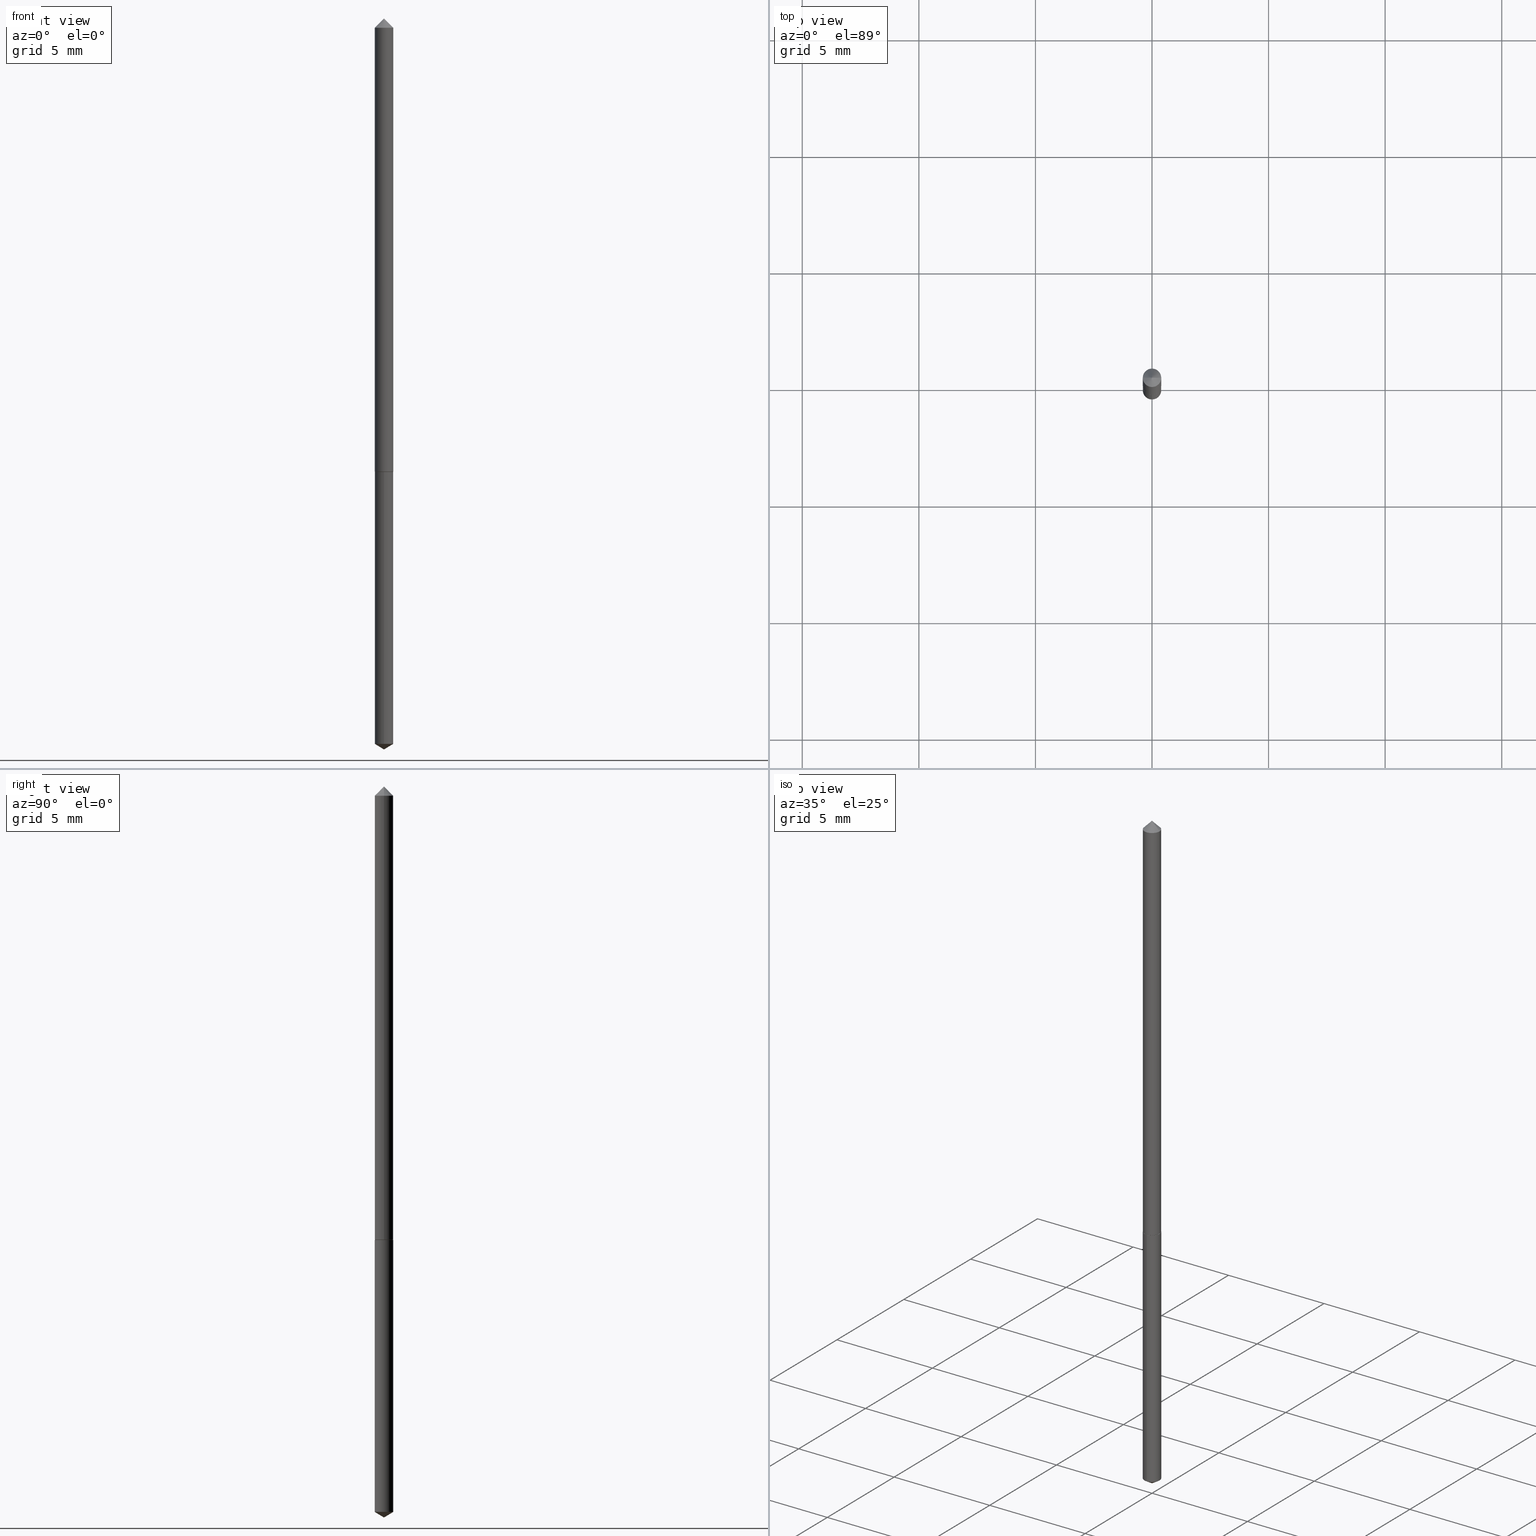
[diagram: canonical four-view strip — front | top / right | iso, engineering-drawing reading convention]
A machine part, canonical four-view strip (front | top / right | iso — engineering-drawing reading convention). The complete STEP part file that produces these views, byte-faithful:
ISO-10303-21;
HEADER;
FILE_DESCRIPTION (( 'STEP AP203' ),
    '1' );
FILE_NAME ('51102.STEP',
    '2024-04-22T18:26:14',
    ( '' ),
    ( '' ),
    'SwSTEP 2.0',
    'SolidWorks 2023',
    '' );
FILE_SCHEMA (( 'CONFIG_CONTROL_DESIGN' ));
ENDSEC;

DATA;
#1 = DIRECTION ( 'NONE',  ( -2.445468806185136597E-29, 3.491481338843145583E-15, 1.000000000000000000 ) ) ;
#2 = CC_DESIGN_PERSON_AND_ORGANIZATION_ASSIGNMENT ( #120, #315, ( #104 ) ) ;
#3 = DIRECTION ( 'NONE',  ( -1.000000000000000000, 6.982962677686267499E-15, 0.000000000000000000 ) ) ;
#4 = DIRECTION ( 'NONE',  ( 1.000000000000000000, 0.000000000000000000, 0.000000000000000000 ) ) ;
#5 = CLOSED_SHELL ( 'NONE', ( #108, #223, #240, #44, #114 ) ) ;
#6 = LOCAL_TIME ( 14, 26, 14.00000000000000000, #207 ) ;
#7 = EDGE_LOOP ( 'NONE', ( #36, #39, #121 ) ) ;
#8 = APPLICATION_PROTOCOL_DEFINITION ( 'international standard', 'config_control_design', 1994, #156 ) ;
#9 = ORIENTED_EDGE ( 'NONE', *, *, #90, .F. ) ;
#10 = EDGE_CURVE ( 'NONE', #288, #231, #248, .T. ) ;
#11 = APPROVAL_DATE_TIME ( #149, #294 ) ;
#12 = VERTEX_POINT ( 'NONE', #126 ) ;
#13 = CARTESIAN_POINT ( 'NONE',  ( 1.910400231391829134E-29, -2.727545221904265644E-15, -0.7812000000000001165 ) ) ;
#14 = CIRCLE ( 'NONE', #196, 0.01560000000000009469 ) ;
#15 = DIRECTION ( 'NONE',  ( -2.445468806185136597E-29, 3.491481338843145583E-15, 1.000000000000000000 ) ) ;
#16 = FACE_OUTER_BOUND ( 'NONE', #255, .T. ) ;
#17 = CYLINDRICAL_SURFACE ( 'NONE', #35, 0.01560000000000004959 ) ;
#18 = AXIS2_PLACEMENT_3D ( 'NONE', #13, #15, #325 ) ;
#19 = APPROVAL_PERSON_ORGANIZATION ( #203, #132, #287 ) ;
#20 = CARTESIAN_POINT ( 'NONE',  ( 1.910400231391829134E-29, -2.727545221904265644E-15, -0.7812000000000001165 ) ) ;
#21 = DIRECTION ( 'NONE',  ( 2.445620456542437956E-29, -3.491264166900087350E-15, -1.000000000000000000 ) ) ;
#22 = DIRECTION ( 'NONE',  ( -2.445620456542437956E-29, 3.491264166900087744E-15, 1.000000000000000000 ) ) ;
#23 = AXIS2_PLACEMENT_3D ( 'NONE', #193, #140, #110 ) ;
#24 = CIRCLE ( 'NONE', #304, 0.01559999999999999928 ) ;
#25 = CARTESIAN_POINT ( 'NONE',  ( 1.108446667786060567E-16, 0.01559999999999727403, -0.7812000000000001165 ) ) ;
#26 = DIRECTION ( 'NONE',  ( -2.445468806185136597E-29, 3.491481338843145583E-15, 1.000000000000000000 ) ) ;
#27 = CARTESIAN_POINT ( 'NONE',  ( 0.01510000000000006649, -2.832987958337328799E-15, -0.7812000000000001165 ) ) ;
#28 = EDGE_CURVE ( 'NONE', #41, #150, #70, .T. ) ;
#29 = CLOSED_SHELL ( 'NONE', ( #353, #264, #291, #62, #232, #154, #276 ) ) ;
#30 = CARTESIAN_POINT ( 'NONE',  ( 7.642090019328600035E-31, -1.091087918388489897E-16, -0.03125000000000020123 ) ) ;
#31 = CC_DESIGN_PERSON_AND_ORGANIZATION_ASSIGNMENT ( #230, #344, ( #320 ) ) ;
#32 = LINE ( 'NONE', #59, #210 ) ;
#33 = ORIENTED_EDGE ( 'NONE', *, *, #253, .F. ) ;
#34 = APPLICATION_PROTOCOL_DEFINITION ( 'international standard', 'config_control_design', 1994, #37 ) ;
#35 = AXIS2_PLACEMENT_3D ( 'NONE', #162, #246, #305 ) ;
#36 = ORIENTED_EDGE ( 'NONE', *, *, #28, .F. ) ;
#37 = APPLICATION_CONTEXT ( 'configuration controlled 3d designs of mechanical parts and assemblies' ) ;
#38 = PERSON_AND_ORGANIZATION ( #143, #298 ) ;
#39 = ORIENTED_EDGE ( 'NONE', *, *, #266, .T. ) ;
#40 = PERSON_AND_ORGANIZATION ( #143, #298 ) ;
#41 = VERTEX_POINT ( 'NONE', #160 ) ;
#42 = APPROVAL_DATE_TIME ( #178, #132 ) ;
#43 = ORIENTED_EDGE ( 'NONE', *, *, #342, .F. ) ;
#44 = ADVANCED_FACE ( 'NONE', ( #75 ), #100, .T. ) ;
#45 = CARTESIAN_POINT ( 'NONE',  ( 3.056788632159799955E-29, -4.364419518068943560E-15, -1.250000000000000000 ) ) ;
#46 = DIRECTION ( 'NONE',  ( -0.7071067811865453523, 2.468850131082234184E-15, -0.7071067811865496822 ) ) ;
#47 = DIMENSIONAL_EXPONENTS ( 1.000000000000000000, 0.000000000000000000, 0.000000000000000000, 0.000000000000000000, 0.000000000000000000, 0.000000000000000000, 0.000000000000000000 ) ;
#48 = CARTESIAN_POINT ( 'NONE',  ( 7.642090019328600035E-31, -1.091087918388489897E-16, -0.03125000000000020123 ) ) ;
#49 = DIRECTION ( 'NONE',  ( -2.445620456542437956E-29, 3.491264166900087350E-15, 1.000000000000000000 ) ) ;
#50 = DIRECTION ( 'NONE',  ( 1.000000000000000000, -6.982962677686272233E-15, 0.000000000000000000 ) ) ;
#51 = EDGE_CURVE ( 'NONE', #150, #241, #308, .T. ) ;
#52 = DIRECTION ( 'NONE',  ( -0.7071067811866394992, 7.493145998870685482E-15, 0.7071067811864553132 ) ) ;
#53 = AXIS2_PLACEMENT_3D ( 'NONE', #361, #136, #165 ) ;
#54 = APPROVAL_PERSON_ORGANIZATION ( #40, #294, #293 ) ;
#55 = DIRECTION ( 'NONE',  ( -2.445620456542437956E-29, 3.491264166900087744E-15, 1.000000000000000000 ) ) ;
#56 = CYLINDRICAL_SURFACE ( 'NONE', #228, 0.01560000000000004959 ) ;
#57 = CARTESIAN_POINT ( 'NONE',  ( 3.033983259884700615E-29, -4.331524758230234496E-15, -1.240626574343170141 ) ) ;
#58 = CC_DESIGN_DATE_AND_TIME_ASSIGNMENT ( #233, #198, ( #320 ) ) ;
#59 = CARTESIAN_POINT ( 'NONE',  ( 3.057027648349169322E-29, -4.364080208625109779E-15, -1.250000000000000000 ) ) ;
#60 = ORIENTED_EDGE ( 'NONE', *, *, #301, .T. ) ;
#61 =( NAMED_UNIT ( * ) SI_UNIT ( $, .STERADIAN. ) SOLID_ANGLE_UNIT ( ) );
#62 = ADVANCED_FACE ( 'NONE', ( #355 ), #274, .F. ) ;
#63 = ORIENTED_EDGE ( 'NONE', *, *, #338, .T. ) ;
#64 = PERSON_AND_ORGANIZATION ( #143, #298 ) ;
#65 = EDGE_LOOP ( 'NONE', ( #119, #84, #199, #69 ) ) ;
#66 = COORDINATED_UNIVERSAL_TIME_OFFSET ( 5, 0, .BEHIND. ) ;
#67 = EDGE_LOOP ( 'NONE', ( #63, #206, #125, #354 ) ) ;
#68 = PERSON_AND_ORGANIZATION_ROLE ( 'design_supplier' ) ;
#69 = ORIENTED_EDGE ( 'NONE', *, *, #148, .F. ) ;
#70 = LINE ( 'NONE', #45, #85 ) ;
#71 = CIRCLE ( 'NONE', #168, 0.01560000000000000275 ) ;
#72 = CONICAL_SURFACE ( 'NONE', #109, 0.01560000000000009469, 0.7853981633975785082 ) ;
#73 = CARTESIAN_POINT ( 'NONE',  ( -1.089342177718866371E-16, -0.01560000000000272627, -0.7812000000000001165 ) ) ;
#74 = FACE_OUTER_BOUND ( 'NONE', #155, .T. ) ;
#75 = FACE_OUTER_BOUND ( 'NONE', #153, .T. ) ;
#76 = DIRECTION ( 'NONE',  ( -2.445620456542437956E-29, 3.491264166900087350E-15, 1.000000000000000000 ) ) ;
#77 = UNCERTAINTY_MEASURE_WITH_UNIT (LENGTH_MEASURE( 1.000000000000000082E-05 ), #278, 'distance_accuracy_value', 'NONE');
#78 = LINE ( 'NONE', #183, #190 ) ;
#79 = VERTEX_POINT ( 'NONE', #359 ) ;
#80 = FACE_OUTER_BOUND ( 'NONE', #348, .T. ) ;
#81 = EDGE_CURVE ( 'NONE', #288, #296, #303, .T. ) ;
#82 = DIRECTION ( 'NONE',  ( -1.000000000000000000, 6.982962677686267499E-15, 0.000000000000000000 ) ) ;
#83 = DIRECTION ( 'NONE',  ( -2.445620456542437956E-29, 3.491264166900087744E-15, 1.000000000000000000 ) ) ;
#84 = ORIENTED_EDGE ( 'NONE', *, *, #10, .T. ) ;
#85 = VECTOR ( 'NONE', #273, 39.37007874015748143 ) ;
#86 = LINE ( 'NONE', #251, #180 ) ;
#87 = COORDINATED_UNIVERSAL_TIME_OFFSET ( 5, 0, .BEHIND. ) ;
#88 = COORDINATED_UNIVERSAL_TIME_OFFSET ( 5, 0, .BEHIND. ) ;
#89 = ORIENTED_EDGE ( 'NONE', *, *, #81, .T. ) ;
#90 = EDGE_CURVE ( 'NONE', #231, #288, #349, .T. ) ;
#91 = DATE_TIME_ROLE ( 'classification_date' ) ;
#92 = EDGE_LOOP ( 'NONE', ( #239, #172, #318, #116 ) ) ;
#93 = EDGE_CURVE ( 'NONE', #79, #263, #78, .T. ) ;
#94 = CALENDAR_DATE ( 2024, 22, 4 ) ;
#95 = ORIENTED_EDGE ( 'NONE', *, *, #257, .F. ) ;
#96 = ORIENTED_EDGE ( 'NONE', *, *, #195, .T. ) ;
#97 = LINE ( 'NONE', #219, #152 ) ;
#98 = VECTOR ( 'NONE', #340, 39.37007874015748854 ) ;
#99 = EDGE_CURVE ( 'NONE', #296, #263, #157, .T. ) ;
#100 = CYLINDRICAL_SURFACE ( 'NONE', #326, 0.01559999999999999928 ) ;
#101 = LINE ( 'NONE', #128, #243 ) ;
#102 = FACE_OUTER_BOUND ( 'NONE', #7, .T. ) ;
#103 = AXIS2_PLACEMENT_3D ( 'NONE', #216, #22, #249 ) ;
#104 = PRODUCT_DEFINITION_FORMATION_WITH_SPECIFIED_SOURCE ( 'ANY', '', #181, .NOT_KNOWN. ) ;
#105 = DIRECTION ( 'NONE',  ( 6.982962677686265922E-15, 1.000000000000000000, -3.491264166900087350E-15 ) ) ;
#106 = DIRECTION ( 'NONE',  ( 1.000000000000000000, -6.982962677686266711E-15, 4.876176775795935793E-29 ) ) ;
#107 = CARTESIAN_POINT ( 'NONE',  ( 0.000000000000000000, 0.000000000000000000, 0.000000000000000000 ) ) ;
#108 = ADVANCED_FACE ( 'NONE', ( #16 ), #356, .T. ) ;
#109 = AXIS2_PLACEMENT_3D ( 'NONE', #363, #312, #197 ) ;
#110 = DIRECTION ( 'NONE',  ( -6.982962677686265922E-15, -1.000000000000000000, 0.000000000000000000 ) ) ;
#111 = MANIFOLD_SOLID_BREP ( 'Body-Move/Copy2[1]', #5 ) ;
#112 = DIRECTION ( 'NONE',  ( 1.000000000000000000, -6.982962677686272233E-15, 0.000000000000000000 ) ) ;
#113 = ORIENTED_EDGE ( 'NONE', *, *, #342, .T. ) ;
#114 = ADVANCED_FACE ( 'NONE', ( #74 ), #130, .F. ) ;
#115 = CIRCLE ( 'NONE', #23, 0.01559999999999999928 ) ;
#116 = ORIENTED_EDGE ( 'NONE', *, *, #225, .F. ) ;
#117 = MANIFOLD_SOLID_BREP ( 'Body-Move/Copy2[2]', #29 ) ;
#118 =( NAMED_UNIT ( * ) PLANE_ANGLE_UNIT ( ) SI_UNIT ( $, .RADIAN. ) );
#119 = ORIENTED_EDGE ( 'NONE', *, *, #81, .F. ) ;
#120 = PERSON_AND_ORGANIZATION ( #143, #298 ) ;
#121 = ORIENTED_EDGE ( 'NONE', *, *, #307, .F. ) ;
#122 = PRODUCT_RELATED_PRODUCT_CATEGORY ( 'detail', '', ( #181 ) ) ;
#123 = APPROVAL_ROLE ( '' ) ;
#124 = AXIS2_PLACEMENT_3D ( 'NONE', #127, #21, #105 ) ;
#125 = ORIENTED_EDGE ( 'NONE', *, *, #137, .F. ) ;
#126 = CARTESIAN_POINT ( 'NONE',  ( 0.01560000000000009469, -2.834733699006751091E-15, -0.7807000000000001716 ) ) ;
#127 = CARTESIAN_POINT ( 'NONE',  ( 1.910400231391829134E-29, -2.727545221904265644E-15, -0.7812000000000001165 ) ) ;
#128 = CARTESIAN_POINT ( 'NONE',  ( 0.01560000000000004959, -1.089342177719061121E-16, 7.606835770241683722E-31 ) ) ;
#129 = LOCAL_TIME ( 14, 26, 14.00000000000000000, #66 ) ;
#130 = PLANE ( 'NONE',  #124 ) ;
#131 = DIRECTION ( 'NONE',  ( 1.000000000000000000, -6.982962677686250144E-15, 0.000000000000000000 ) ) ;
#132 = APPROVAL ( #321, 'UNSPECIFIED' ) ;
#133 = CARTESIAN_POINT ( 'NONE',  ( 1.910400231391829134E-29, -2.727545221904265644E-15, -0.7812000000000001165 ) ) ;
#134 = CONICAL_SURFACE ( 'NONE', #343, 0.01560000000000009469, 0.7853981633975785082 ) ;
#135 = CIRCLE ( 'NONE', #319, 0.01560000000000009469 ) ;
#136 = DIRECTION ( 'NONE',  ( -2.445620456542437956E-29, 3.491264166900087744E-15, 1.000000000000000000 ) ) ;
#137 = EDGE_CURVE ( 'NONE', #208, #263, #71, .T. ) ;
#138 = CARTESIAN_POINT ( 'NONE',  ( -0.01560000000000000275, -1.306609469758268803E-15, -0.03125000000000020123 ) ) ;
#139 = CARTESIAN_POINT ( 'NONE',  ( 3.033983259884700615E-29, -4.331524758230234496E-15, -1.240626574343170141 ) ) ;
#140 = DIRECTION ( 'NONE',  ( -2.445620456542437956E-29, 3.491264166900087744E-15, 1.000000000000000000 ) ) ;
#141 = ORIENTED_EDGE ( 'NONE', *, *, #10, .F. ) ;
#142 = AXIS2_PLACEMENT_3D ( 'NONE', #20, #328, #270 ) ;
#143 = PERSON ( 'UNSPECIFIED', 'UNSPECIFIED', 'UNSPECIFIED', ('UNSPECIFIED'), ('UNSPECIFIED'), ('UNSPECIFIED') ) ;
#144 = SECURITY_CLASSIFICATION_LEVEL ( 'unclassified' ) ;
#145 = ORIENTED_EDGE ( 'NONE', *, *, #195, .F. ) ;
#146 = PERSON_AND_ORGANIZATION ( #143, #298 ) ;
#147 = EDGE_LOOP ( 'NONE', ( #9, #141 ) ) ;
#148 = EDGE_CURVE ( 'NONE', #296, #12, #14, .T. ) ;
#149 = DATE_AND_TIME ( #323, #350 ) ;
#150 = VERTEX_POINT ( 'NONE', #187 ) ;
#151 = SHAPE_DEFINITION_REPRESENTATION ( #211, #217 ) ;
#152 = VECTOR ( 'NONE', #49, 39.37007874015748143 ) ;
#153 = EDGE_LOOP ( 'NONE', ( #145, #60, #316, #43 ) ) ;
#154 = ADVANCED_FACE ( 'NONE', ( #158 ), #17, .T. ) ;
#155 = EDGE_LOOP ( 'NONE', ( #337, #113 ) ) ;
#156 = APPLICATION_CONTEXT ( 'configuration controlled 3d designs of mechanical parts and assemblies' ) ;
#157 = LINE ( 'NONE', #306, #237 ) ;
#158 = FACE_OUTER_BOUND ( 'NONE', #92, .T. ) ;
#159 = AXIS2_PLACEMENT_3D ( 'NONE', #214, #302, #131 ) ;
#160 = CARTESIAN_POINT ( 'NONE',  ( 3.057025570678047796E-29, -4.364080208625109779E-15, -1.250000000000000000 ) ) ;
#161 = CC_DESIGN_PERSON_AND_ORGANIZATION_ASSIGNMENT ( #38, #174, ( #181 ) ) ;
#162 = CARTESIAN_POINT ( 'NONE',  ( 0.000000000000000000, 0.000000000000000000, 0.000000000000000000 ) ) ;
#163 = LENGTH_MEASURE_WITH_UNIT ( LENGTH_MEASURE( 0.02539999999999999897 ), #227 );
#164 = CONICAL_SURFACE ( 'NONE', #244, 0.01560000000000000275, 0.7853981633974452814 ) ;
#165 = DIRECTION ( 'NONE',  ( -6.982962677686267499E-15, -1.000000000000000000, 3.468864327941580804E-15 ) ) ;
#166 = DIRECTION ( 'NONE',  ( 0.7071067811865453523, -7.319954787623248157E-15, -0.7071067811865496822 ) ) ;
#167 = DIRECTION ( 'NONE',  ( -2.445620456542437956E-29, 3.491264166900087744E-15, 1.000000000000000000 ) ) ;
#168 = AXIS2_PLACEMENT_3D ( 'NONE', #48, #184, #334 ) ;
#169 = DIRECTION ( 'NONE',  ( -6.982962677686265922E-15, -1.000000000000000000, 0.000000000000000000 ) ) ;
#170 = CC_DESIGN_PERSON_AND_ORGANIZATION_ASSIGNMENT ( #346, #317, ( #173 ) ) ;
#171 = DIRECTION ( 'NONE',  ( 0.000000000000000000, 0.000000000000000000, 1.000000000000000000 ) ) ;
#172 = ORIENTED_EDGE ( 'NONE', *, *, #148, .T. ) ;
#173 = SECURITY_CLASSIFICATION ( '', '', #144 ) ;
#174 = PERSON_AND_ORGANIZATION_ROLE ( 'design_owner' ) ;
#175 = ORIENTED_EDGE ( 'NONE', *, *, #338, .F. ) ;
#176 = APPROVAL_STATUS ( 'not_yet_approved' ) ;
#177 = ORIENTED_EDGE ( 'NONE', *, *, #137, .T. ) ;
#178 = DATE_AND_TIME ( #94, #129 ) ;
#179 = VERTEX_POINT ( 'NONE', #357 ) ;
#180 = VECTOR ( 'NONE', #166, 39.37007874015748143 ) ;
#181 = PRODUCT ( '51102', '51102', '', ( #200 ) ) ;
#182 = ORIENTED_EDGE ( 'NONE', *, *, #225, .T. ) ;
#183 = CARTESIAN_POINT ( 'NONE',  ( -0.01560000000000000275, -1.745740669432077165E-19, -0.03125000000000020123 ) ) ;
#184 = DIRECTION ( 'NONE',  ( -2.445468806185136597E-29, 3.491481338843145583E-15, 1.000000000000000000 ) ) ;
#185 = APPROVAL ( #176, 'UNSPECIFIED' ) ;
#186 = DIRECTION ( 'NONE',  ( -2.445620456542437956E-29, 3.491264166900087744E-15, 1.000000000000000000 ) ) ;
#187 = CARTESIAN_POINT ( 'NONE',  ( -1.089342177718754328E-16, -0.01560000000000433609, -1.240626574343170141 ) ) ;
#188 = DIRECTION ( 'NONE',  ( -2.445468806185136597E-29, 3.491481338843145583E-15, 1.000000000000000000 ) ) ;
#189 = DIRECTION ( 'NONE',  ( 1.000000000000000000, -6.982962677686272233E-15, 0.000000000000000000 ) ) ;
#190 = VECTOR ( 'NONE', #46, 39.37007874015748143 ) ;
#191 = FACE_OUTER_BOUND ( 'NONE', #65, .T. ) ;
#192 = EDGE_CURVE ( 'NONE', #12, #208, #101, .T. ) ;
#193 = CARTESIAN_POINT ( 'NONE',  ( 1.910400231391829134E-29, -2.727545221904265644E-15, -0.7812000000000001165 ) ) ;
#194 = FACE_OUTER_BOUND ( 'NONE', #351, .T. ) ;
#195 = EDGE_CURVE ( 'NONE', #179, #286, #97, .T. ) ;
#196 = AXIS2_PLACEMENT_3D ( 'NONE', #242, #213, #50 ) ;
#197 = DIRECTION ( 'NONE',  ( 1.000000000000000000, -6.982962677686272233E-15, 0.000000000000000000 ) ) ;
#198 = DATE_TIME_ROLE ( 'creation_date' ) ;
#199 = ORIENTED_EDGE ( 'NONE', *, *, #271, .T. ) ;
#200 = MECHANICAL_CONTEXT ( 'NONE', #156, 'mechanical' ) ;
#201 = ORIENTED_EDGE ( 'NONE', *, *, #51, .F. ) ;
#202 = AXIS2_PLACEMENT_3D ( 'NONE', #30, #256, #82 ) ;
#203 = PERSON_AND_ORGANIZATION ( #143, #298 ) ;
#204 = ORIENTED_EDGE ( 'NONE', *, *, #253, .T. ) ;
#205 = DATE_AND_TIME ( #295, #6 ) ;
#206 = ORIENTED_EDGE ( 'NONE', *, *, #99, .T. ) ;
#207 = COORDINATED_UNIVERSAL_TIME_OFFSET ( 5, 0, .BEHIND. ) ;
#208 = VERTEX_POINT ( 'NONE', #275 ) ;
#209 = CC_DESIGN_PERSON_AND_ORGANIZATION_ASSIGNMENT ( #64, #68, ( #104 ) ) ;
#210 = VECTOR ( 'NONE', #339, 39.37007874015748854 ) ;
#211 = PRODUCT_DEFINITION_SHAPE ( 'NONE', 'NONE',  #320 ) ;
#212 = CC_DESIGN_APPROVAL ( #185, ( #320 ) ) ;
#213 = DIRECTION ( 'NONE',  ( -2.445468806185136597E-29, 3.491481338843145583E-15, 1.000000000000000000 ) ) ;
#214 = CARTESIAN_POINT ( 'NONE',  ( 1.910400231391829134E-29, -2.727545221904265644E-15, -0.7812000000000001165 ) ) ;
#215 = DIRECTION ( 'NONE',  ( -6.982962677686265922E-15, -1.000000000000000000, 0.000000000000000000 ) ) ;
#216 = CARTESIAN_POINT ( 'NONE',  ( -9.322736284119673855E-28, 1.330870952901997285E-13, 38.12007874015748143 ) ) ;
#217 = ADVANCED_BREP_SHAPE_REPRESENTATION ( '51102', ( #111, #117, #284 ), #327 ) ;
#218 = AXIS2_PLACEMENT_3D ( 'NONE', #139, #55, #254 ) ;
#219 = CARTESIAN_POINT ( 'NONE',  ( 1.108446667785947168E-16, 0.01559999999999727056, -0.7812000000000001165 ) ) ;
#220 = CARTESIAN_POINT ( 'NONE',  ( 1.909177496988736613E-29, -2.725799481234844535E-15, -0.7807000000000001716 ) ) ;
#221 = CARTESIAN_POINT ( 'NONE',  ( 0.01560000000000009469, -2.834733699006751091E-15, -0.7807000000000001716 ) ) ;
#222 = LOCAL_TIME ( 14, 26, 14.00000000000000000, #290 ) ;
#223 = ADVANCED_FACE ( 'NONE', ( #102 ), #258, .T. ) ;
#224 = FACE_OUTER_BOUND ( 'NONE', #67, .T. ) ;
#225 = EDGE_CURVE ( 'NONE', #263, #208, #267, .T. ) ;
#226 = CARTESIAN_POINT ( 'NONE',  ( 1.910400231391829134E-29, -2.727545221904265644E-15, -0.7812000000000001165 ) ) ;
#227 =( LENGTH_UNIT ( ) NAMED_UNIT ( * ) SI_UNIT ( $, .METRE. ) );
#228 = AXIS2_PLACEMENT_3D ( 'NONE', #107, #26, #106 ) ;
#229 = CIRCLE ( 'NONE', #279, 0.01559999999999999928 ) ;
#230 = PERSON_AND_ORGANIZATION ( #143, #298 ) ;
#231 = VERTEX_POINT ( 'NONE', #27 ) ;
#232 = ADVANCED_FACE ( 'NONE', ( #191 ), #134, .T. ) ;
#233 = DATE_AND_TIME ( #262, #364 ) ;
#234 = EDGE_LOOP ( 'NONE', ( #324, #300, #269 ) ) ;
#235 = APPROVAL_STATUS ( 'not_yet_approved' ) ;
#236 = ORIENTED_EDGE ( 'NONE', *, *, #307, .T. ) ;
#237 = VECTOR ( 'NONE', #329, 39.37007874015748143 ) ;
#238 = DATE_AND_TIME ( #347, #222 ) ;
#239 = ORIENTED_EDGE ( 'NONE', *, *, #99, .F. ) ;
#240 = ADVANCED_FACE ( 'NONE', ( #311 ), #277, .T. ) ;
#241 = VERTEX_POINT ( 'NONE', #341 ) ;
#242 = CARTESIAN_POINT ( 'NONE',  ( 1.909177496988736613E-29, -2.725799481234844535E-15, -0.7807000000000001716 ) ) ;
#243 = VECTOR ( 'NONE', #330, 39.37007874015748143 ) ;
#244 = AXIS2_PLACEMENT_3D ( 'NONE', #285, #336, #3 ) ;
#245 = CARTESIAN_POINT ( 'NONE',  ( 1.910400231391829134E-29, -2.727545221904265644E-15, -0.7812000000000001165 ) ) ;
#246 = DIRECTION ( 'NONE',  ( -2.445468806185136597E-29, 3.491481338843145583E-15, 1.000000000000000000 ) ) ;
#247 = DIRECTION ( 'NONE',  ( -6.982962677686265922E-15, -1.000000000000000000, 0.000000000000000000 ) ) ;
#248 = CIRCLE ( 'NONE', #18, 0.01510000000000006649 ) ;
#249 = DIRECTION ( 'NONE',  ( -6.982962677686267499E-15, -1.000000000000000000, 3.468864327941580804E-15 ) ) ;
#250 = CARTESIAN_POINT ( 'NONE',  ( 1.909177496988736613E-29, -2.725799481234844535E-15, -0.7807000000000001716 ) ) ;
#251 = CARTESIAN_POINT ( 'NONE',  ( 0.01560000000000000275, -2.161325606040849121E-16, -0.03125000000000020123 ) ) ;
#252 = FACE_OUTER_BOUND ( 'NONE', #265, .T. ) ;
#253 = EDGE_CURVE ( 'NONE', #79, #208, #86, .T. ) ;
#254 = DIRECTION ( 'NONE',  ( -6.982962677686265922E-15, -1.000000000000000000, 0.000000000000000000 ) ) ;
#255 = EDGE_LOOP ( 'NONE', ( #236, #96, #95, #201 ) ) ;
#256 = DIRECTION ( 'NONE',  ( 2.445468806185136597E-29, -3.491481338843145583E-15, -1.000000000000000000 ) ) ;
#257 = EDGE_CURVE ( 'NONE', #241, #286, #115, .T. ) ;
#258 = CONICAL_SURFACE ( 'NONE', #103, 65.52281426576868739, 1.029744258676656310 ) ;
#259 = CC_DESIGN_APPROVAL ( #294, ( #104 ) ) ;
#260 = CARTESIAN_POINT ( 'NONE',  ( 0.000000000000000000, 0.000000000000000000, 0.000000000000000000 ) ) ;
#261 = ORIENTED_EDGE ( 'NONE', *, *, #90, .T. ) ;
#262 = CALENDAR_DATE ( 2024, 22, 4 ) ;
#263 = VERTEX_POINT ( 'NONE', #138 ) ;
#264 = ADVANCED_FACE ( 'NONE', ( #224 ), #56, .T. ) ;
#265 = EDGE_LOOP ( 'NONE', ( #261, #89, #175, #292 ) ) ;
#266 = EDGE_CURVE ( 'NONE', #41, #179, #32, .T. ) ;
#267 = CIRCLE ( 'NONE', #314, 0.01560000000000000275 ) ;
#268 = CIRCLE ( 'NONE', #218, 0.01559999999999999928 ) ;
#269 = ORIENTED_EDGE ( 'NONE', *, *, #301, .F. ) ;
#270 = DIRECTION ( 'NONE',  ( 1.000000000000000000, -6.982962677686265922E-15, 4.876176775795935793E-29 ) ) ;
#271 = EDGE_CURVE ( 'NONE', #231, #12, #309, .T. ) ;
#272 = DIRECTION ( 'NONE',  ( -2.445620456542437956E-29, 3.491264166900087744E-15, 1.000000000000000000 ) ) ;
#273 = DIRECTION ( 'NONE',  ( -5.985567269335949957E-15, -0.8571673007021114454, 0.5150380749100555988 ) ) ;
#274 = PLANE ( 'NONE',  #142 ) ;
#275 = CARTESIAN_POINT ( 'NONE',  ( 0.01560000000000000275, -2.180430096107547937E-16, -0.03125000000000020123 ) ) ;
#276 = ADVANCED_FACE ( 'NONE', ( #80 ), #362, .T. ) ;
#277 = CONICAL_SURFACE ( 'NONE', #53, 65.52281426576868739, 1.029744258676656310 ) ;
#278 =( CONVERSION_BASED_UNIT ( 'INCH', #163 ) LENGTH_UNIT ( ) NAMED_UNIT ( #47 ) );
#279 = AXIS2_PLACEMENT_3D ( 'NONE', #226, #83, #169 ) ;
#280 = DIRECTION ( 'NONE',  ( 1.000000000000000000, -6.982962677686267499E-15, 0.000000000000000000 ) ) ;
#281 = CARTESIAN_POINT ( 'NONE',  ( -0.01510000000000006649, -2.617604041630379299E-15, -0.7812000000000001165 ) ) ;
#282 = CARTESIAN_POINT ( 'NONE',  ( -0.01560000000000009469, -2.614954814456268098E-15, -0.7807000000000001716 ) ) ;
#283 = AXIS2_PLACEMENT_3D ( 'NONE', #133, #186, #247 ) ;
#284 = AXIS2_PLACEMENT_3D ( 'NONE', #260, #171, #4 ) ;
#285 = CARTESIAN_POINT ( 'NONE',  ( 7.642090019328600035E-31, -1.091087918388489897E-16, -0.03125000000000020123 ) ) ;
#286 = VERTEX_POINT ( 'NONE', #25 ) ;
#287 = APPROVAL_ROLE ( '' ) ;
#288 = VERTEX_POINT ( 'NONE', #281 ) ;
#289 = CC_DESIGN_APPROVAL ( #132, ( #173 ) ) ;
#290 = COORDINATED_UNIVERSAL_TIME_OFFSET ( 5, 0, .BEHIND. ) ;
#291 = ADVANCED_FACE ( 'NONE', ( #252 ), #72, .T. ) ;
#292 = ORIENTED_EDGE ( 'NONE', *, *, #271, .F. ) ;
#293 = APPROVAL_ROLE ( '' ) ;
#294 = APPROVAL ( #235, 'UNSPECIFIED' ) ;
#295 = CALENDAR_DATE ( 2024, 22, 4 ) ;
#296 = VERTEX_POINT ( 'NONE', #282 ) ;
#297 = VECTOR ( 'NONE', #52, 39.37007874015748854 ) ;
#298 = ORGANIZATION ( 'UNSPECIFIED', 'UNSPECIFIED', '' ) ;
#299 = APPROVAL_PERSON_ORGANIZATION ( #146, #185, #123 ) ;
#300 = ORIENTED_EDGE ( 'NONE', *, *, #28, .T. ) ;
#301 = EDGE_CURVE ( 'NONE', #179, #150, #24, .T. ) ;
#302 = DIRECTION ( 'NONE',  ( -2.445468806185136597E-29, 3.491481338843145583E-15, 1.000000000000000000 ) ) ;
#303 = LINE ( 'NONE', #358, #297 ) ;
#304 = AXIS2_PLACEMENT_3D ( 'NONE', #57, #167, #360 ) ;
#305 = DIRECTION ( 'NONE',  ( 1.000000000000000000, -6.982962677686266711E-15, 4.876176775795935793E-29 ) ) ;
#306 = CARTESIAN_POINT ( 'NONE',  ( -0.01560000000000004959, 1.108446667785759814E-16, -7.673538740797677887E-31 ) ) ;
#307 = EDGE_CURVE ( 'NONE', #150, #179, #268, .T. ) ;
#308 = LINE ( 'NONE', #73, #331 ) ;
#309 = LINE ( 'NONE', #221, #98 ) ;
#310 = DESIGN_CONTEXT ( 'detailed design', #37, 'design' ) ;
#311 = FACE_OUTER_BOUND ( 'NONE', #234, .T. ) ;
#312 = DIRECTION ( 'NONE',  ( -2.445468806185136597E-29, 3.491481338843145583E-15, 1.000000000000000000 ) ) ;
#313 = DIRECTION ( 'NONE',  ( -2.445468806185136597E-29, 3.491481338843145583E-15, 1.000000000000000000 ) ) ;
#314 = AXIS2_PLACEMENT_3D ( 'NONE', #335, #188, #280 ) ;
#315 = PERSON_AND_ORGANIZATION_ROLE ( 'creator' ) ;
#316 = ORIENTED_EDGE ( 'NONE', *, *, #51, .T. ) ;
#317 = PERSON_AND_ORGANIZATION_ROLE ( 'classification_officer' ) ;
#318 = ORIENTED_EDGE ( 'NONE', *, *, #192, .T. ) ;
#319 = AXIS2_PLACEMENT_3D ( 'NONE', #220, #1, #112 ) ;
#320 = PRODUCT_DEFINITION ( 'UNKNOWN', '', #104, #310 ) ;
#321 = APPROVAL_STATUS ( 'not_yet_approved' ) ;
#322 = ORIENTED_EDGE ( 'NONE', *, *, #93, .F. ) ;
#323 = CALENDAR_DATE ( 2024, 22, 4 ) ;
#324 = ORIENTED_EDGE ( 'NONE', *, *, #266, .F. ) ;
#325 = DIRECTION ( 'NONE',  ( 1.000000000000000000, -6.982962677686250144E-15, 0.000000000000000000 ) ) ;
#326 = AXIS2_PLACEMENT_3D ( 'NONE', #245, #272, #215 ) ;
#327 =( GEOMETRIC_REPRESENTATION_CONTEXT ( 3 ) GLOBAL_UNCERTAINTY_ASSIGNED_CONTEXT ( ( #77 ) ) GLOBAL_UNIT_ASSIGNED_CONTEXT ( ( #278, #118, #61 ) ) REPRESENTATION_CONTEXT ( 'NONE', 'WORKASPACE' ) );
#328 = DIRECTION ( 'NONE',  ( -2.438088387897960049E-29, 3.491481338843145188E-15, 1.000000000000000000 ) ) ;
#329 = DIRECTION ( 'NONE',  ( -2.445468806185136877E-29, 3.491481338843145188E-15, 1.000000000000000000 ) ) ;
#330 = DIRECTION ( 'NONE',  ( -2.445468806185136877E-29, 3.491481338843145188E-15, 1.000000000000000000 ) ) ;
#331 = VECTOR ( 'NONE', #76, 39.37007874015748143 ) ;
#332 = CC_DESIGN_SECURITY_CLASSIFICATION ( #173, ( #104 ) ) ;
#333 = CC_DESIGN_DATE_AND_TIME_ASSIGNMENT ( #238, #91, ( #173 ) ) ;
#334 = DIRECTION ( 'NONE',  ( 1.000000000000000000, -6.982962677686267499E-15, 0.000000000000000000 ) ) ;
#335 = CARTESIAN_POINT ( 'NONE',  ( 7.642090019328600035E-31, -1.091087918388489897E-16, -0.03125000000000020123 ) ) ;
#336 = DIRECTION ( 'NONE',  ( 2.445468806185136597E-29, -3.491481338843145583E-15, -1.000000000000000000 ) ) ;
#337 = ORIENTED_EDGE ( 'NONE', *, *, #257, .T. ) ;
#338 = EDGE_CURVE ( 'NONE', #12, #296, #135, .T. ) ;
#339 = DIRECTION ( 'NONE',  ( 6.090539988449787113E-15, 0.8571673007021151092, 0.5150380749100497146 ) ) ;
#340 = DIRECTION ( 'NONE',  ( 0.7071067811866394992, -2.468850131083221443E-15, 0.7071067811864553132 ) ) ;
#341 = CARTESIAN_POINT ( 'NONE',  ( -1.089342177718866371E-16, -0.01560000000000272627, -0.7812000000000001165 ) ) ;
#342 = EDGE_CURVE ( 'NONE', #286, #241, #229, .T. ) ;
#343 = AXIS2_PLACEMENT_3D ( 'NONE', #250, #313, #189 ) ;
#344 = PERSON_AND_ORGANIZATION_ROLE ( 'creator' ) ;
#345 = ORIENTED_EDGE ( 'NONE', *, *, #93, .T. ) ;
#346 = PERSON_AND_ORGANIZATION ( #143, #298 ) ;
#347 = CALENDAR_DATE ( 2024, 22, 4 ) ;
#348 = EDGE_LOOP ( 'NONE', ( #33, #345, #182 ) ) ;
#349 = CIRCLE ( 'NONE', #159, 0.01510000000000006649 ) ;
#350 = LOCAL_TIME ( 14, 26, 14.00000000000000000, #88 ) ;
#351 = EDGE_LOOP ( 'NONE', ( #322, #204, #177 ) ) ;
#352 = APPROVAL_DATE_TIME ( #205, #185 ) ;
#353 = ADVANCED_FACE ( 'NONE', ( #194 ), #164, .T. ) ;
#354 = ORIENTED_EDGE ( 'NONE', *, *, #192, .F. ) ;
#355 = FACE_OUTER_BOUND ( 'NONE', #147, .T. ) ;
#356 = CYLINDRICAL_SURFACE ( 'NONE', #283, 0.01559999999999999928 ) ;
#357 = CARTESIAN_POINT ( 'NONE',  ( 1.108446667786059827E-16, 0.01559999999999567115, -1.240626574343170141 ) ) ;
#358 = CARTESIAN_POINT ( 'NONE',  ( -0.01560000000000009469, -2.614954814456268098E-15, -0.7807000000000001716 ) ) ;
#359 = CARTESIAN_POINT ( 'NONE',  ( 3.827158681679763061E-31, -5.464168295289557003E-17, -0.01565000000000009786 ) ) ;
#360 = DIRECTION ( 'NONE',  ( -6.982962677686265922E-15, -1.000000000000000000, 0.000000000000000000 ) ) ;
#361 = CARTESIAN_POINT ( 'NONE',  ( -9.322736284119673855E-28, 1.330870952901997285E-13, 38.12007874015748143 ) ) ;
#362 = CONICAL_SURFACE ( 'NONE', #202, 0.01560000000000000275, 0.7853981633974452814 ) ;
#363 = CARTESIAN_POINT ( 'NONE',  ( 1.909177496988736613E-29, -2.725799481234844535E-15, -0.7807000000000001716 ) ) ;
#364 = LOCAL_TIME ( 14, 26, 14.00000000000000000, #87 ) ;
ENDSEC;
END-ISO-10303-21;
